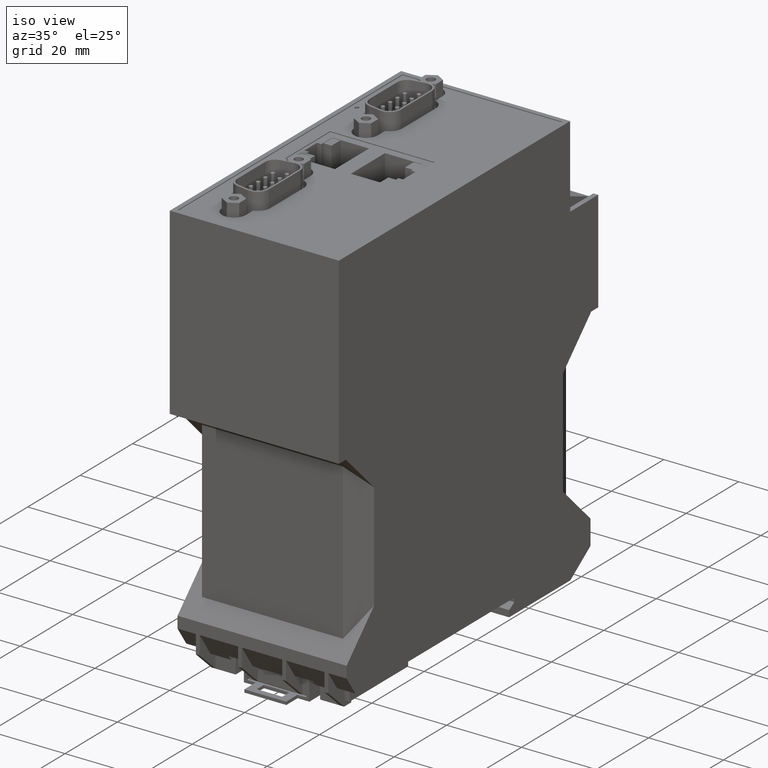
[diagram: clean part render]
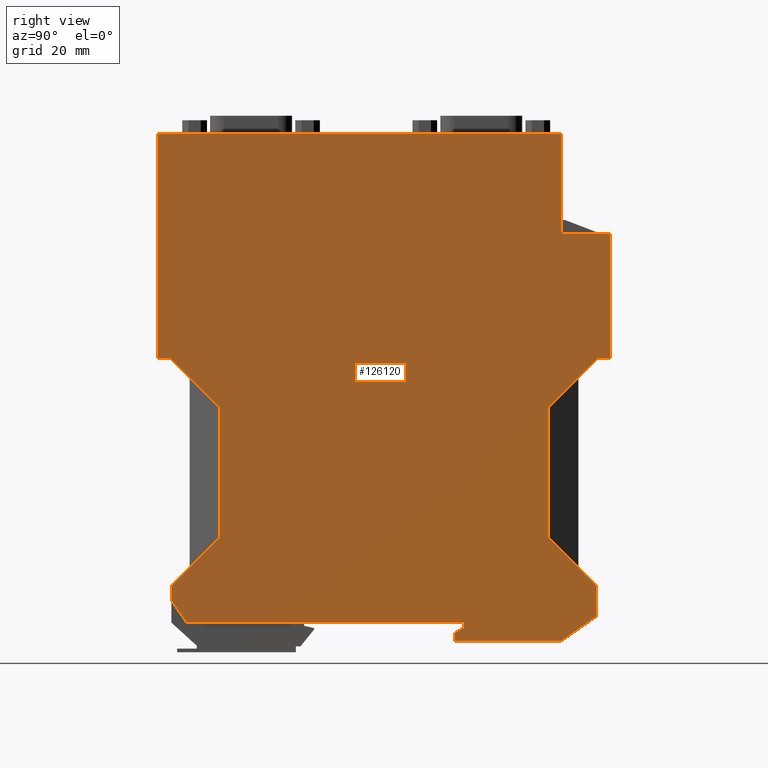
[diagram: tour spotlight — one face highlighted and labeled with its STEP entity id]
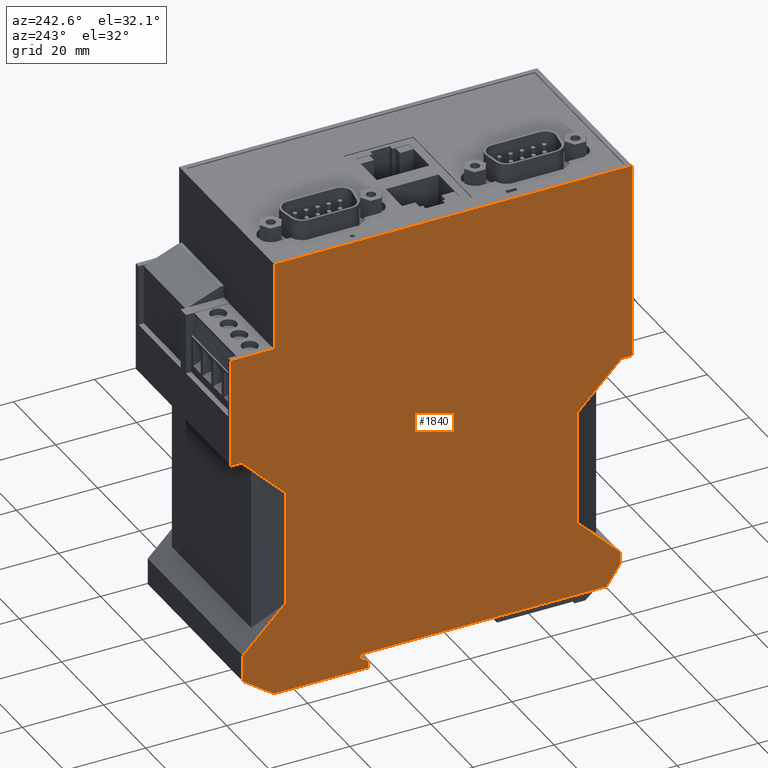
[diagram: tour spotlight — one face highlighted and labeled with its STEP entity id]
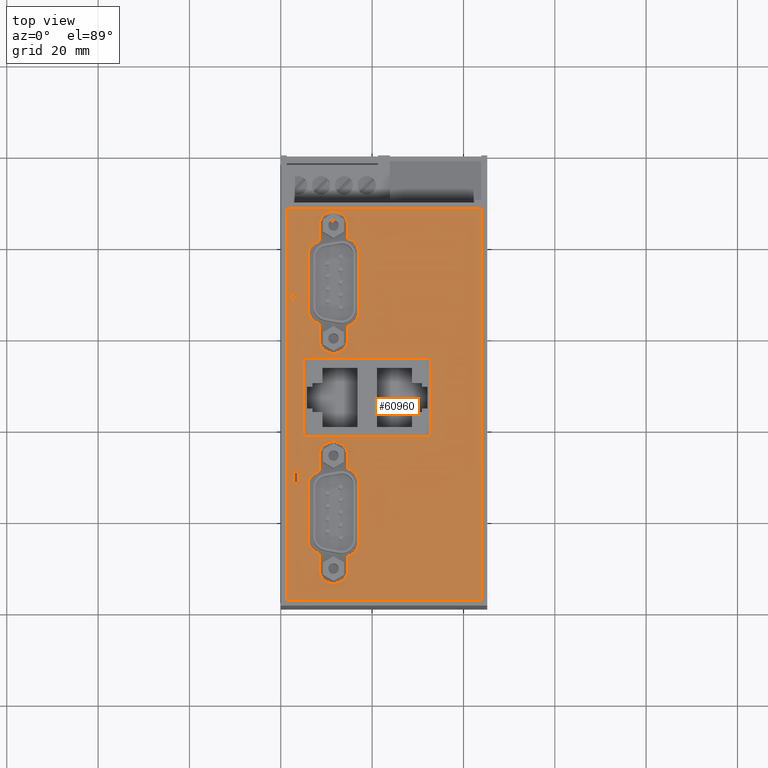
[diagram: tour spotlight — one face highlighted and labeled with its STEP entity id]
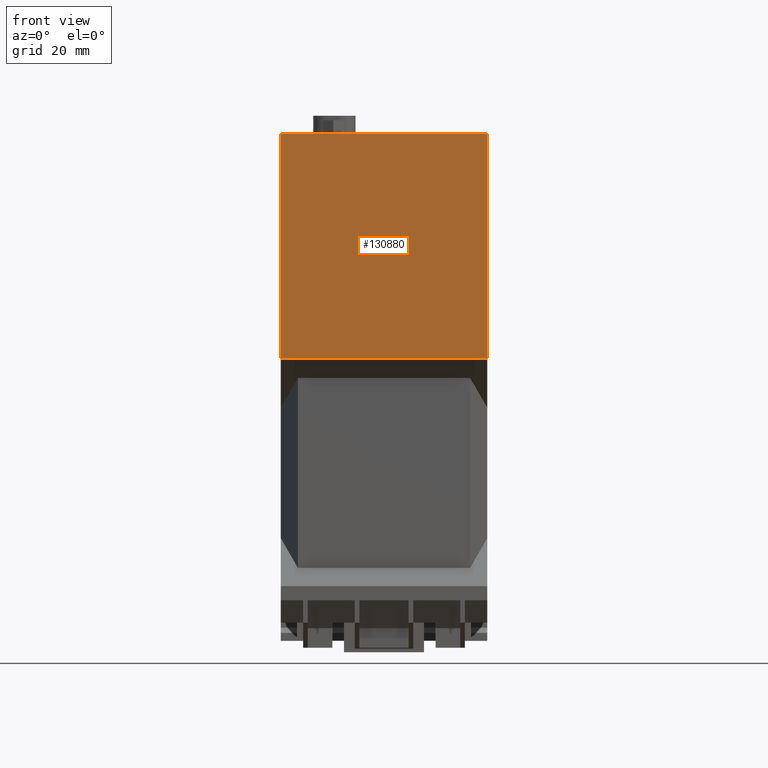
[diagram: tour spotlight — one face highlighted and labeled with its STEP entity id]
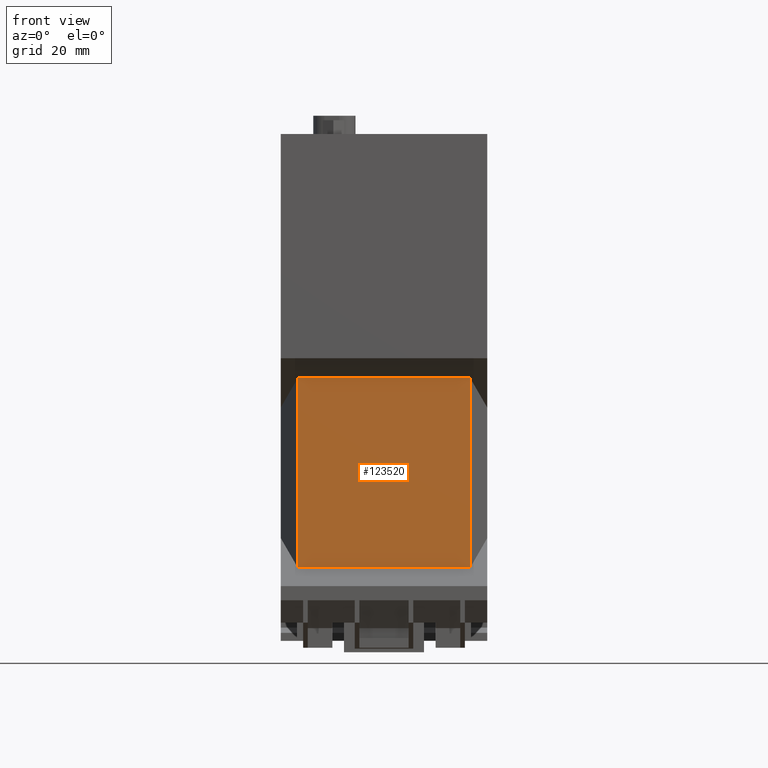
[diagram: tour spotlight — one face highlighted and labeled with its STEP entity id]
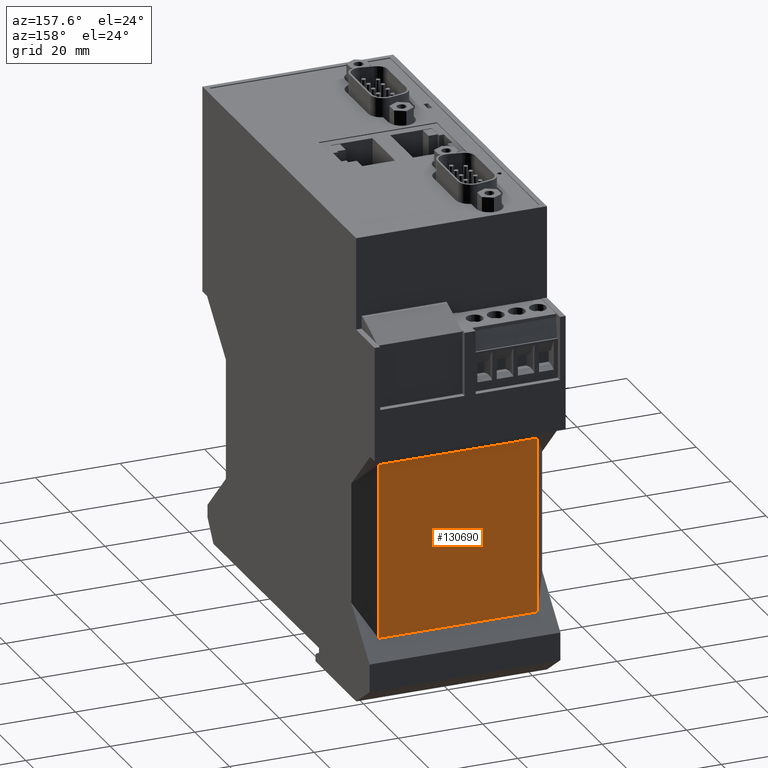
[diagram: tour spotlight — one face highlighted and labeled with its STEP entity id]
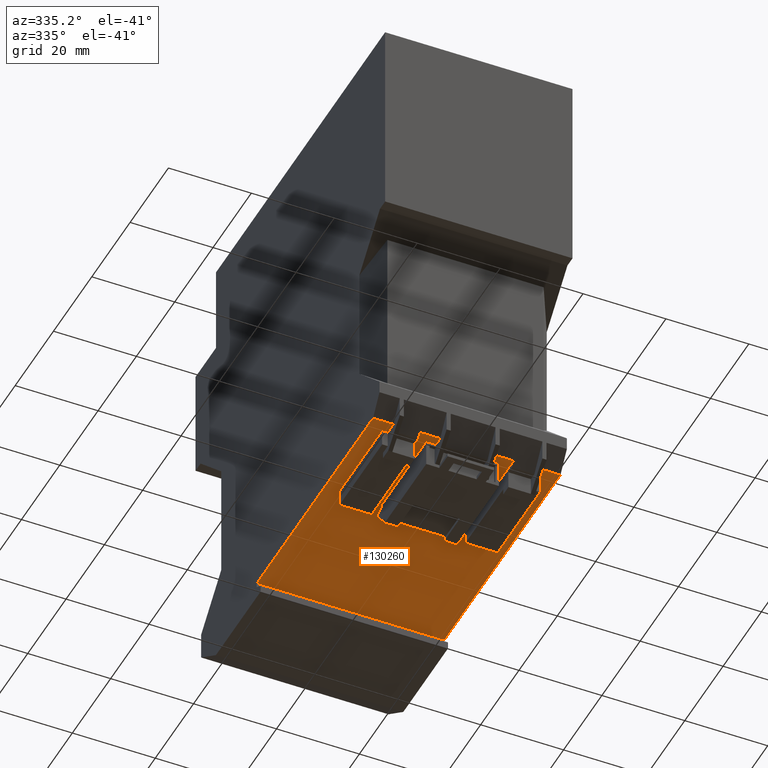
[diagram: tour spotlight — one face highlighted and labeled with its STEP entity id]
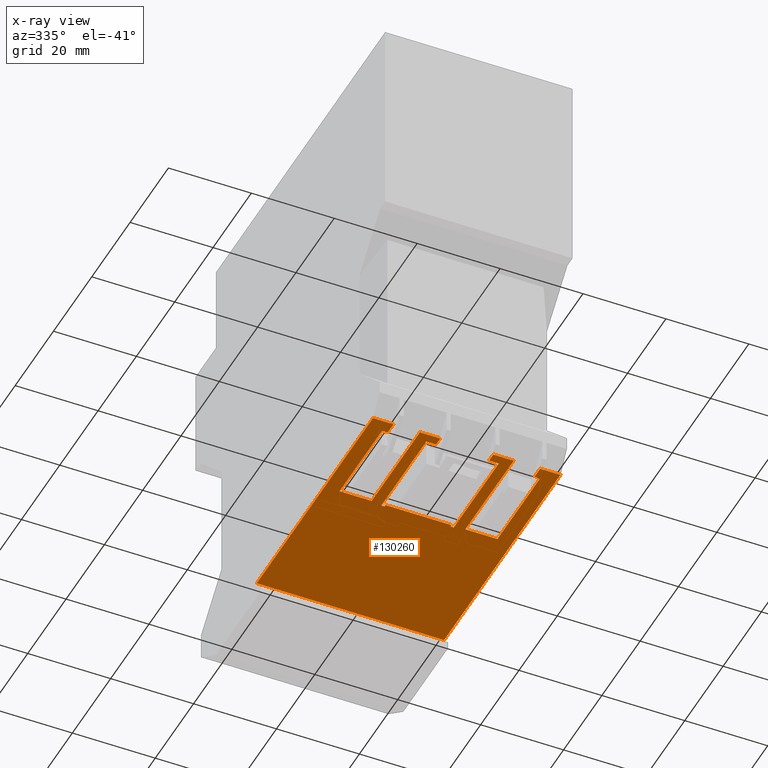
[diagram: x-ray of the same camera — body ghosted, this tour face saturated]
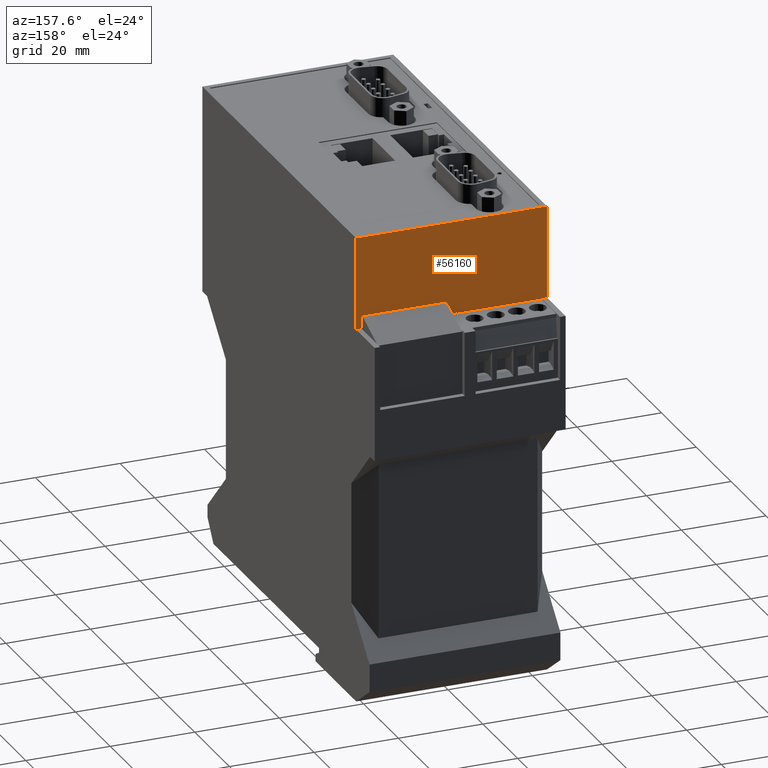
[diagram: tour spotlight — one face highlighted and labeled with its STEP entity id]
A machine part: a face-by-face anatomy tour. The part has 412 B-rep faces; the first image is the clean iso view, then the 8 largest visible faces are spotlighted one at a time (largest first), each with its STEP entity span.

Face 1 — right view, entity #126120. In plain terms, the highlighted planar face has unit normal (1, 0, 0).
Definition (entity closure, byte-faithful):
#19360=CARTESIAN_POINT('',(-66.9999999999093,57.9000000000013,33.9));
#19370=VERTEX_POINT('',#19360);
#19400=CARTESIAN_POINT('',(24.,57.8999999999923,33.9));
#19410=DIRECTION('',(-1.,9.89E-14,0.));
#19420=VECTOR('',#19410,1.);
#19430=LINE('',#19400,#19420);
#19440=CARTESIAN_POINT('',(-64.3500000000018,57.900000000001,33.9));
#19450=VERTEX_POINT('',#19440);
#19460=EDGE_CURVE('',#19450,#19370,#19430,.T.);
#21780=CARTESIAN_POINT('',(-64.0500000000063,4.9000000000159,33.9));
#21790=VERTEX_POINT('',#21780);
#21820=CARTESIAN_POINT('',(-77.1081632652817,24.,33.9));
#21830=DIRECTION('',(0.564381899303651,-0.825513822863314,-0.));
#21840=VECTOR('',#21830,1.);
#21850=LINE('',#21820,#21840);
#21860=CARTESIAN_POINT('',(-60.7000000000009,5.04485342389671E-13,33.9))
;
#21870=VERTEX_POINT('',#21860);
#21880=EDGE_CURVE('',#21790,#21870,#21850,.T.);
#55960=CARTESIAN_POINT('',(21.2999999999832,85.1000000000079,33.9));
#55970=VERTEX_POINT('',#55960);
#56000=CARTESIAN_POINT('',(21.3000000000036,24.,33.9));
#56010=DIRECTION('',(2.17588503380295E-24,-1.,-0.));
#56020=VECTOR('',#56010,1.);
#56030=LINE('',#56000,#56020);
#56040=CARTESIAN_POINT('',(21.2999999999832,106.999999999943,33.9));
#56050=VERTEX_POINT('',#56040);
#56060=EDGE_CURVE('',#56050,#55970,#56030,.T.);
#56650=CARTESIAN_POINT('',(24.,106.999999999941,33.9));
#56660=DIRECTION('',(-1.,7.38964445188328E-13,0.));
#56670=VECTOR('',#56660,1.);
#56680=LINE('',#56650,#56670);
#56690=CARTESIAN_POINT('',(-66.9999999999093,107.000000000009,33.9));
#56700=VERTEX_POINT('',#56690);
#56710=EDGE_CURVE('',#56050,#56700,#56680,.T.);
#122860=CARTESIAN_POINT('',(31.9999999999779,85.1000000000079,33.9));
#122870=VERTEX_POINT('',#122860);
#122900=CARTESIAN_POINT('',(24.,85.1000000000079,33.9));
#122910=DIRECTION('',(-1.,-2.17588503379895E-24,0.));
#122920=VECTOR('',#122910,1.);
#122930=LINE('',#122900,#122920);
#122940=EDGE_CURVE('',#122870,#55970,#122930,.T.);
#124700=CARTESIAN_POINT('',(-57.4000000000029,25.7999999999959,33.9));
#124710=DIRECTION('',(0.,0.,1.));
#124720=DIRECTION('',(1.,0.,0.));
#124730=AXIS2_PLACEMENT_3D('',#124700,#124710,#124720);
#124740=PLANE('',#124730);
#124750=ORIENTED_EDGE('',*,*,#21880,.T.);
#124760=CARTESIAN_POINT('',(-64.0500000000063,24.,33.9));
#124770=DIRECTION('',(0.,1.,0.));
#124780=VECTOR('',#124770,1.);
#124790=LINE('',#124760,#124780);
#124800=CARTESIAN_POINT('',(-64.0500000000063,7.99999999999596,33.9));
#124810=VERTEX_POINT('',#124800);
#124820=EDGE_CURVE('',#21790,#124810,#124790,.T.);
#124830=ORIENTED_EDGE('',*,*,#124820,.F.);
#124840=CARTESIAN_POINT('',(24.,96.049999999986,33.9));
#124850=DIRECTION('',(0.707106781186613,0.707106781186482,0.));
#124860=VECTOR('',#124850,1.);
#124870=LINE('',#124840,#124860);
#124880=CARTESIAN_POINT('',(-53.5500000000014,18.4999999999989,33.9));
#124890=VERTEX_POINT('',#124880);
#124900=EDGE_CURVE('',#124810,#124890,#124870,.T.);
#124910=ORIENTED_EDGE('',*,*,#124900,.F.);
#124920=CARTESIAN_POINT('',(-53.5500000000014,24.,33.9));
#124930=DIRECTION('',(0.,-1.,0.));
#124940=VECTOR('',#124930,1.);
#124950=LINE('',#124920,#124940);
#124960=CARTESIAN_POINT('',(-53.5500000000014,47.1000000000007,33.9));
#124970=VERTEX_POINT('',#124960);
#124980=EDGE_CURVE('',#124970,#124890,#124950,.T.);
#124990=ORIENTED_EDGE('',*,*,#124980,.T.);
#125000=CARTESIAN_POINT('',(24.,-30.45,33.9));
#125010=DIRECTION('',(-0.707106781186551,0.707106781186544,0.));
#125020=VECTOR('',#125010,1.);
#125030=LINE('',#125000,#125020);
#125040=EDGE_CURVE('',#124970,#19450,#125030,.T.);
#125050=ORIENTED_EDGE('',*,*,#125040,.F.);
#125060=ORIENTED_EDGE('',*,*,#19460,.F.);
#125070=CARTESIAN_POINT('',(-66.9999999999093,24.,33.9));
#125080=DIRECTION('',(0.,1.,0.));
#125090=VECTOR('',#125080,1.);
#125100=LINE('',#125070,#125090);
#125110=EDGE_CURVE('',#19370,#56700,#125100,.T.);
#125120=ORIENTED_EDGE('',*,*,#125110,.F.);
#125130=ORIENTED_EDGE('',*,*,#56710,.T.);
#125140=ORIENTED_EDGE('',*,*,#56060,.F.);
#125150=ORIENTED_EDGE('',*,*,#122940,.T.);
#125160=CARTESIAN_POINT('',(32.0000000000223,24.,33.9));
#125170=DIRECTION('',(-7.27300000002176E-13,1.,0.));
#125180=VECTOR('',#125170,1.);
#125190=LINE('',#125160,#125180);
#125200=CARTESIAN_POINT('',(31.9999999999977,57.9000000000013,33.9));
#125210=VERTEX_POINT('',#125200);
#125220=EDGE_CURVE('',#125210,#122870,#125190,.T.);
#125230=ORIENTED_EDGE('',*,*,#125220,.T.);
#125240=CARTESIAN_POINT('',(24.,57.9000000000005,33.9));
#125250=DIRECTION('',(1.,9.89E-14,0.));
#125260=VECTOR('',#125250,1.);
#125270=LINE('',#125240,#125260);
#125280=CARTESIAN_POINT('',(29.3500000000902,57.900000000001,33.9));
#125290=VERTEX_POINT('',#125280);
#125300=EDGE_CURVE('',#125290,#125210,#125270,.T.);
#125310=ORIENTED_EDGE('',*,*,#125300,.T.);
#125320=CARTESIAN_POINT('',(24.,52.5499999999109,33.9));
#125330=DIRECTION('',(0.707106781186551,0.707106781186544,0.));
#125340=VECTOR('',#125330,1.);
#125350=LINE('',#125320,#125340);
#125360=CARTESIAN_POINT('',(18.5499999999986,47.0999999999095,33.9));
#125370=VERTEX_POINT('',#125360);
#125380=EDGE_CURVE('',#125370,#125290,#125350,.T.);
#125390=ORIENTED_EDGE('',*,*,#125380,.T.);
#125400=CARTESIAN_POINT('',(18.5499999999986,24.,33.9));
#125410=DIRECTION('',(0.,1.,0.));
#125420=VECTOR('',#125410,1.);
#125430=LINE('',#125400,#125420);
#125440=CARTESIAN_POINT('',(18.5499999999986,18.5000000000902,33.9));
#125450=VERTEX_POINT('',#125440);
#125460=EDGE_CURVE('',#125450,#125370,#125430,.T.);
#125470=ORIENTED_EDGE('',*,*,#125460,.T.);
#125480=CARTESIAN_POINT('',(24.,13.0500000000897,33.9));
#125490=DIRECTION('',(-0.707106781186613,0.707106781186482,0.));
#125500=VECTOR('',#125490,1.);
#125510=LINE('',#125480,#125500);
#125520=CARTESIAN_POINT('',(29.0500000000947,7.99999999999599,33.9));
#125530=VERTEX_POINT('',#125520);
#125540=EDGE_CURVE('',#125530,#125450,#125510,.T.);
#125550=ORIENTED_EDGE('',*,*,#125540,.T.);
#125560=CARTESIAN_POINT('',(29.0500000000947,24.,33.9));
#125570=DIRECTION('',(0.,1.,0.));
#125580=VECTOR('',#125570,1.);
#125590=LINE('',#125560,#125580);
#125600=CARTESIAN_POINT('',(29.0500000000846,1.40000000003149,33.9));
#125610=VERTEX_POINT('',#125600);
#125620=EDGE_CURVE('',#125610,#125530,#125590,.T.);
#125630=ORIENTED_EDGE('',*,*,#125620,.T.);
#125640=CARTESIAN_POINT('',(24.,-2.13604806800835,33.9));
#125650=DIRECTION('',(-0.819152044288986,-0.573576436351054,0.));
#125660=VECTOR('',#125650,1.);
#125670=LINE('',#125640,#125660);
#125680=CARTESIAN_POINT('',(21.3380007636528,-3.99999999998567,33.9));
#125690=VERTEX_POINT('',#125680);
#125700=EDGE_CURVE('',#125610,#125690,#125670,.T.);
#125710=ORIENTED_EDGE('',*,*,#125700,.F.);
#125720=CARTESIAN_POINT('',(24.,-4.00000000000009,33.9));
#125730=DIRECTION('',(1.,4.80965890943096E-26,0.));
#125740=VECTOR('',#125730,1.);
#125750=LINE('',#125720,#125740);
#125760=CARTESIAN_POINT('',(-2.00000000000178,-4.00000000000022,33.9));
#125770=VERTEX_POINT('',#125760);
#125780=EDGE_CURVE('',#125770,#125690,#125750,.T.);
#125790=ORIENTED_EDGE('',*,*,#125780,.T.);
#125800=CARTESIAN_POINT('',(-2.00000000000178,24.,33.9));
#125810=DIRECTION('',(0.,1.,0.));
#125820=VECTOR('',#125810,1.);
#125830=LINE('',#125800,#125820);
#125840=CARTESIAN_POINT('',(-2.00000000000178,-2.25459663117339,33.9));
#125850=VERTEX_POINT('',#125840);
#125860=EDGE_CURVE('',#125770,#125850,#125830,.T.);
#125870=ORIENTED_EDGE('',*,*,#125860,.F.);
#125880=CARTESIAN_POINT('',(24.,12.7565103677565,33.9));
#125890=DIRECTION('',(-0.86602540378446,-0.499999999999964,0.));
#125900=VECTOR('',#125890,1.);
#125910=LINE('',#125880,#125900);
#125920=CARTESIAN_POINT('',(-1.76925141204265E-12,-1.09989609279425,33.9
));
#125930=VERTEX_POINT('',#125920);
#125940=EDGE_CURVE('',#125930,#125850,#125910,.T.);
#125950=ORIENTED_EDGE('',*,*,#125940,.T.);
#125960=CARTESIAN_POINT('',(-1.77990955307905E-12,24.,33.9));
#125970=DIRECTION('',(4.E-16,-1.,-0.));
#125980=VECTOR('',#125970,1.);
#125990=LINE('',#125960,#125980);
#126000=CARTESIAN_POINT('',(-1.76925141204265E-12,-3.69482222595252E-13,
33.9));
#126010=VERTEX_POINT('',#126000);
#126020=EDGE_CURVE('',#126010,#125930,#125990,.T.);
#126030=ORIENTED_EDGE('',*,*,#126020,.T.);
#126040=CARTESIAN_POINT('',(24.,-7.14095449438901E-13,33.9));
#126050=DIRECTION('',(1.,-1.44E-14,-0.));
#126060=VECTOR('',#126050,1.);
#126070=LINE('',#126040,#126060);
#126080=EDGE_CURVE('',#21870,#126010,#126070,.T.);
#126090=ORIENTED_EDGE('',*,*,#126080,.T.);
#126100=EDGE_LOOP('',(#126090,#126030,#125950,#125870,#125790,#125710,
#125630,#125550,#125470,#125390,#125310,#125230,#125150,#125140,#125130,
#125120,#125060,#125050,#124990,#124910,#124830,#124750));
#126110=FACE_OUTER_BOUND('',#126100,.T.);
#126120=ADVANCED_FACE('',(#126110),#124740,.T.);

Face 2 — auxiliary view, entity #1840. In plain terms, the highlighted planar face has unit normal (-1, 0, 0).
Definition (entity closure, byte-faithful):
#10=CARTESIAN_POINT('',(24.,24.,-11.3));
#20=DIRECTION('',(0.,0.,-1.));
#30=DIRECTION('',(-1.,0.,0.));
#40=AXIS2_PLACEMENT_3D('',#10,#20,#30);
#50=PLANE('',#40);
#60=CARTESIAN_POINT('',(24.,-7.14095449438901E-13,-11.3));
#70=DIRECTION('',(1.,-1.44E-14,-0.));
#80=VECTOR('',#70,1.);
#90=LINE('',#60,#80);
#100=CARTESIAN_POINT('',(-60.7000000000028,5.04485342389671E-13,-11.3));
#110=VERTEX_POINT('',#100);
#120=CARTESIAN_POINT('',(-1.76925141204265E-12,-3.69482222595252E-13,
-11.3));
#130=VERTEX_POINT('',#120);
#140=EDGE_CURVE('',#110,#130,#90,.T.);
#150=ORIENTED_EDGE('',*,*,#140,.F.);
#160=CARTESIAN_POINT('',(-1.76925141204265E-12,-3.69482222595252E-13,
-11.3));
#170=DIRECTION('',(-3.23004482157597E-15,-1.,0.));
#180=VECTOR('',#170,1.);
#190=LINE('',#160,#180);
#200=CARTESIAN_POINT('',(-1.76925141204265E-12,-1.09989609279425,-11.3))
;
#210=VERTEX_POINT('',#200);
#220=EDGE_CURVE('',#130,#210,#190,.T.);
#230=ORIENTED_EDGE('',*,*,#220,.F.);
#240=CARTESIAN_POINT('',(-1.77280412572145E-12,-1.09989609279425,-11.3))
;
#250=DIRECTION('',(-0.86602540378446,-0.499999999999964,0.));
#260=VECTOR('',#250,1.);
#270=LINE('',#240,#260);
#280=CARTESIAN_POINT('',(-2.00000000000178,-2.25459663117339,-11.3));
#290=VERTEX_POINT('',#280);
#300=EDGE_CURVE('',#210,#290,#270,.T.);
#310=ORIENTED_EDGE('',*,*,#300,.F.);
#320=CARTESIAN_POINT('',(-2.00000000000288,24.,-11.3));
#330=DIRECTION('',(4.27899157140077E-14,-1.,-0.));
#340=VECTOR('',#330,1.);
#350=LINE('',#320,#340);
#360=CARTESIAN_POINT('',(-2.00000000000178,-4.00000000000004,-11.3));
#370=VERTEX_POINT('',#360);
#380=EDGE_CURVE('',#290,#370,#350,.T.);
#390=ORIENTED_EDGE('',*,*,#380,.F.);
#400=CARTESIAN_POINT('',(24.,-4.00000000000004,-11.3));
#410=DIRECTION('',(1.,4.80965890943096E-26,0.));
#420=VECTOR('',#410,1.);
#430=LINE('',#400,#420);
#440=CARTESIAN_POINT('',(21.3380007636733,-4.00000000000004,-11.3));
#450=VERTEX_POINT('',#440);
#460=EDGE_CURVE('',#370,#450,#430,.T.);
#470=ORIENTED_EDGE('',*,*,#460,.F.);
#480=CARTESIAN_POINT('',(24.,-2.13604806801552,-11.3));
#490=DIRECTION('',(0.819152044288986,0.573576436351054,0.));
#500=VECTOR('',#490,1.);
#510=LINE('',#480,#500);
#520=CARTESIAN_POINT('',(29.0500000000947,1.40000000000989,-11.3));
#530=VERTEX_POINT('',#520);
#540=EDGE_CURVE('',#450,#530,#510,.T.);
#550=ORIENTED_EDGE('',*,*,#540,.F.);
#560=CARTESIAN_POINT('',(29.0500000000947,1.40000000001025,-11.3));
#570=DIRECTION('',(2.15315980533829E-15,1.,0.));
#580=VECTOR('',#570,1.);
#590=LINE('',#560,#580);
#600=CARTESIAN_POINT('',(29.0500000000947,7.99999999999599,-11.3));
#610=VERTEX_POINT('',#600);
#620=EDGE_CURVE('',#530,#610,#590,.T.);
#630=ORIENTED_EDGE('',*,*,#620,.F.);
#640=CARTESIAN_POINT('',(24.,13.0500000000897,-11.3));
#650=DIRECTION('',(-0.707106781186613,0.707106781186482,0.));
#660=VECTOR('',#650,1.);
#670=LINE('',#640,#660);
#680=CARTESIAN_POINT('',(18.55000000009,18.4999999999987,-11.3));
#690=VERTEX_POINT('',#680);
#700=EDGE_CURVE('',#610,#690,#670,.T.);
#710=ORIENTED_EDGE('',*,*,#700,.F.);
#720=CARTESIAN_POINT('',(18.5500000000901,24.,-11.3));
#730=DIRECTION('',(4.E-15,1.,0.));
#740=VECTOR('',#730,1.);
#750=LINE('',#720,#740);
#760=CARTESIAN_POINT('',(18.5500000000902,47.1000000000011,-11.3));
#770=VERTEX_POINT('',#760);
#780=EDGE_CURVE('',#690,#770,#750,.T.);
#790=ORIENTED_EDGE('',*,*,#780,.F.);
#800=CARTESIAN_POINT('',(24.,52.5499999999109,-11.3));
#810=DIRECTION('',(0.707106781186551,0.707106781186544,0.));
#820=VECTOR('',#810,1.);
#830=LINE('',#800,#820);
#840=CARTESIAN_POINT('',(29.3500000000902,57.900000000001,-11.3));
#850=VERTEX_POINT('',#840);
#860=EDGE_CURVE('',#770,#850,#830,.T.);
#870=ORIENTED_EDGE('',*,*,#860,.F.);
#880=CARTESIAN_POINT('',(24.,57.9000000000005,-11.3));
#890=DIRECTION('',(1.,9.89E-14,0.));
#900=VECTOR('',#890,1.);
#910=LINE('',#880,#900);
#920=CARTESIAN_POINT('',(32.0000000000386,57.9000000000013,-11.3));
#930=VERTEX_POINT('',#920);
#940=EDGE_CURVE('',#850,#930,#910,.T.);
#950=ORIENTED_EDGE('',*,*,#940,.F.);
#960=CARTESIAN_POINT('',(32.0000000000633,24.,-11.3));
#970=DIRECTION('',(7.27300000002176E-13,-1.,-0.));
#980=VECTOR('',#970,1.);
#990=LINE('',#960,#980);
#1000=CARTESIAN_POINT('',(32.0000000000188,85.1000000000079,-11.3));
#1010=VERTEX_POINT('',#1000);
#1020=EDGE_CURVE('',#1010,#930,#990,.T.);
#1030=ORIENTED_EDGE('',*,*,#1020,.T.);
#1040=CARTESIAN_POINT('',(24.,85.1000000000079,-11.3));
#1050=DIRECTION('',(-1.,-2.17588503379895E-24,0.));
#1060=VECTOR('',#1050,1.);
#1070=LINE('',#1040,#1060);
#1080=CARTESIAN_POINT('',(21.3000000000241,85.1000000000079,-11.3));
#1090=VERTEX_POINT('',#1080);
#1100=EDGE_CURVE('',#1010,#1090,#1070,.T.);
#1110=ORIENTED_EDGE('',*,*,#1100,.F.);
#1120=CARTESIAN_POINT('',(21.3000000000241,24.,-11.3));
#1130=DIRECTION('',(-2.17588503380295E-24,1.,0.));
#1140=VECTOR('',#1130,1.);
#1150=LINE('',#1120,#1140);
#1160=CARTESIAN_POINT('',(21.3000000000241,106.999999999943,-11.3));
#1170=VERTEX_POINT('',#1160);
#1180=EDGE_CURVE('',#1090,#1170,#1150,.T.);
#1190=ORIENTED_EDGE('',*,*,#1180,.F.);
#1200=CARTESIAN_POINT('',(24.,106.999999999941,-11.3));
#1210=DIRECTION('',(-1.,7.38964445188328E-13,0.));
#1220=VECTOR('',#1210,1.);
#1230=LINE('',#1200,#1220);
#1240=CARTESIAN_POINT('',(-66.9999999999093,107.000000000009,-11.3));
#1250=VERTEX_POINT('',#1240);
#1260=EDGE_CURVE('',#1170,#1250,#1230,.T.);
#1270=ORIENTED_EDGE('',*,*,#1260,.F.);
#1280=CARTESIAN_POINT('',(-66.9999999999093,24.,-11.3));
#1290=DIRECTION('',(0.,1.,0.));
#1300=VECTOR('',#1290,1.);
#1310=LINE('',#1280,#1300);
#1320=CARTESIAN_POINT('',(-66.9999999999093,57.9000000000013,-11.3));
#1330=VERTEX_POINT('',#1320);
#1340=EDGE_CURVE('',#1330,#1250,#1310,.T.);
#1350=ORIENTED_EDGE('',*,*,#1340,.T.);
#1360=CARTESIAN_POINT('',(24.,57.8999999999923,-11.3));
#1370=DIRECTION('',(-1.,9.89E-14,0.));
#1380=VECTOR('',#1370,1.);
#1390=LINE('',#1360,#1380);
#1400=CARTESIAN_POINT('',(-64.3500000000018,57.900000000001,-11.3));
#1410=VERTEX_POINT('',#1400);
#1420=EDGE_CURVE('',#1410,#1330,#1390,.T.);
#1430=ORIENTED_EDGE('',*,*,#1420,.T.);
#1440=CARTESIAN_POINT('',(24.,-30.45,-11.3));
#1450=DIRECTION('',(0.707106781186551,-0.707106781186544,-0.));
#1460=VECTOR('',#1450,1.);
#1470=LINE('',#1440,#1460);
#1480=CARTESIAN_POINT('',(-53.5500000000017,47.1000000000011,-11.3));
#1490=VERTEX_POINT('',#1480);
#1500=EDGE_CURVE('',#1410,#1490,#1470,.T.);
#1510=ORIENTED_EDGE('',*,*,#1500,.F.);
#1520=CARTESIAN_POINT('',(-53.5500000000017,24.,-11.3));
#1530=DIRECTION('',(0.,1.,0.));
#1540=VECTOR('',#1530,1.);
#1550=LINE('',#1520,#1540);
#1560=CARTESIAN_POINT('',(-53.5500000000018,18.4999999999986,-11.3));
#1570=VERTEX_POINT('',#1560);
#1580=EDGE_CURVE('',#1570,#1490,#1550,.T.);
#1590=ORIENTED_EDGE('',*,*,#1580,.T.);
#1600=CARTESIAN_POINT('',(24.,96.049999999986,-11.3));
#1610=DIRECTION('',(-0.707106781186613,-0.707106781186482,0.));
#1620=VECTOR('',#1610,1.);
#1630=LINE('',#1600,#1620);
#1640=CARTESIAN_POINT('',(-64.0500000000063,7.99999999999596,-11.3));
#1650=VERTEX_POINT('',#1640);
#1660=EDGE_CURVE('',#1570,#1650,#1630,.T.);
#1670=ORIENTED_EDGE('',*,*,#1660,.F.);
#1680=CARTESIAN_POINT('',(-64.0500000000063,24.,-11.3));
#1690=DIRECTION('',(0.,-1.,0.));
#1700=VECTOR('',#1690,1.);
#1710=LINE('',#1680,#1700);
#1720=CARTESIAN_POINT('',(-64.0500000000063,4.90000000001318,-11.3));
#1730=VERTEX_POINT('',#1720);
#1740=EDGE_CURVE('',#1650,#1730,#1710,.T.);
#1750=ORIENTED_EDGE('',*,*,#1740,.F.);
#1760=CARTESIAN_POINT('',(-77.1081632652836,24.,-11.3));
#1770=DIRECTION('',(-0.564381899303651,0.825513822863314,0.));
#1780=VECTOR('',#1770,1.);
#1790=LINE('',#1760,#1780);
#1800=EDGE_CURVE('',#110,#1730,#1790,.T.);
#1810=ORIENTED_EDGE('',*,*,#1800,.T.);
#1820=EDGE_LOOP('',(#1810,#1750,#1670,#1590,#1510,#1430,#1350,#1270,
#1190,#1110,#1030,#950,#870,#790,#710,#630,#550,#470,#390,#310,#230,#150
));
#1830=FACE_OUTER_BOUND('',#1820,.T.);
#1840=ADVANCED_FACE('',(#1830),#50,.T.);

Face 3 — top view, entity #60960. In plain terms, the highlighted planar face has unit normal (-0, 0, 1).
Definition (entity closure, byte-faithful):
#56980=CARTESIAN_POINT('',(-65.7499999999966,106.800000000019,
32.6499999999959));
#56990=VERTEX_POINT('',#56980);
#57020=CARTESIAN_POINT('',(24.,106.799999999941,32.6499999999959));
#57030=DIRECTION('',(-1.,7.38964445188328E-13,0.));
#57040=VECTOR('',#57030,1.);
#57050=LINE('',#57020,#57040);
#57060=CARTESIAN_POINT('',(20.0499999999852,106.799999999956,
32.6499999999959));
#57070=VERTEX_POINT('',#57060);
#57080=EDGE_CURVE('',#57070,#56990,#57050,.T.);
#57360=CARTESIAN_POINT('',(-65.7499999999966,106.800000000019,
-10.0499999998488));
#57370=VERTEX_POINT('',#57360);
#57400=CARTESIAN_POINT('',(-65.7499999999966,106.800000000008,-11.3));
#57410=DIRECTION('',(-6.47623918906154E-37,-8.76330016597908E-25,-1.));
#57420=VECTOR('',#57410,1.);
#57430=LINE('',#57400,#57420);
#57440=EDGE_CURVE('',#56990,#57370,#57430,.T.);
#57640=CARTESIAN_POINT('',(20.0499999999852,106.799999999944,-11.3));
#57650=DIRECTION('',(6.47623918906154E-37,8.76330016597908E-25,1.));
#57660=VECTOR('',#57650,1.);
#57670=LINE('',#57640,#57660);
#57680=CARTESIAN_POINT('',(20.0499999999852,106.799999999956,
-10.0499999998488));
#57690=VERTEX_POINT('',#57680);
#57700=EDGE_CURVE('',#57690,#57070,#57670,.T.);
#57890=CARTESIAN_POINT('',(-6.94999999994276,106.799999999976,
-2.19999999999999));
#57900=DIRECTION('',(7.38964445188328E-13,1.,-8.76330016597908E-25));
#57910=DIRECTION('',(1.,-7.38964445188328E-13,-0.));
#57920=AXIS2_PLACEMENT_3D('',#57890,#57900,#57910);
#57930=PLANE('',#57920);
#57940=CARTESIAN_POINT('',(-40.2333999999013,106.800000000001,-13.5));
#57950=DIRECTION('',(-6.62562871323012E-18,-8.76325120071037E-25,-1.));
#57960=VECTOR('',#57950,1.);
#57970=LINE('',#57940,#57960);
#57980=CARTESIAN_POINT('',(-40.2333999999013,106.800000000001,
-7.44339999998654));
#57990=VERTEX_POINT('',#57980);
#58000=CARTESIAN_POINT('',(-40.2333999999013,106.800000000001,
-8.44339999998654));
#58010=VERTEX_POINT('',#58000);
#58020=EDGE_CURVE('',#57990,#58010,#57970,.T.);
#58030=ORIENTED_EDGE('',*,*,#58020,.T.);
#58040=CARTESIAN_POINT('',(39.9,106.799999999941,-7.44339999998654));
#58050=DIRECTION('',(-1.,7.38964445188328E-13,6.62562860080833E-18));
#58060=VECTOR('',#58050,1.);
#58070=LINE('',#58040,#58060);
#58080=CARTESIAN_POINT('',(-37.6333999999013,106.799999999999,
-7.44339999998654));
#58090=VERTEX_POINT('',#58080);
#58100=EDGE_CURVE('',#58090,#57990,#58070,.T.);
#58110=ORIENTED_EDGE('',*,*,#58100,.T.);
#58120=CARTESIAN_POINT('',(-37.6333999999013,106.799999999999,-13.5));
#58130=DIRECTION('',(6.62562871323012E-18,8.76325120071037E-25,1.));
#58140=VECTOR('',#58130,1.);
#58150=LINE('',#58120,#58140);
#58160=CARTESIAN_POINT('',(-37.6333999999013,106.799999999999,
-8.44339999998654));
#58170=VERTEX_POINT('',#58160);
#58180=EDGE_CURVE('',#58170,#58090,#58150,.T.);
#58190=ORIENTED_EDGE('',*,*,#58180,.T.);
#58200=CARTESIAN_POINT('',(39.9,106.799999999941,-8.44339999998654));
#58210=DIRECTION('',(1.,-7.38964445188328E-13,-6.62562860080833E-18));
#58220=VECTOR('',#58210,1.);
#58230=LINE('',#58200,#58220);
#58240=EDGE_CURVE('',#58010,#58170,#58230,.T.);
#58250=ORIENTED_EDGE('',*,*,#58240,.T.);
#58260=EDGE_LOOP('',(#58250,#58190,#58110,#58030));
#58270=FACE_BOUND('',#58260,.T.);
#58280=CARTESIAN_POINT('',(0.591999999983017,106.8,-8.58819999998434));
#58290=DIRECTION('',(7.38964445188328E-13,1.,-8.76330016597908E-25));
#58300=DIRECTION('',(-1.,7.38964445188328E-13,3.59138363842027E-39));
#58310=AXIS2_PLACEMENT_3D('',#58280,#58290,#58300);
#58320=CIRCLE('',#58310,0.54);
#58330=CARTESIAN_POINT('',(0.0519999999830167,106.799999999971,
-8.58819999998434));
#58340=VERTEX_POINT('',#58330);
#58350=CARTESIAN_POINT('',(1.13199999998302,106.799999999999,
-8.58819999998434));
#58360=VERTEX_POINT('',#58350);
#58370=EDGE_CURVE('',#58340,#58360,#58320,.T.);
#58380=ORIENTED_EDGE('',*,*,#58370,.F.);
#58390=EDGE_CURVE('',#58360,#58340,#58320,.T.);
#58400=ORIENTED_EDGE('',*,*,#58390,.F.);
#58410=EDGE_LOOP('',(#58400,#58380));
#58420=FACE_BOUND('',#58410,.T.);
#58430=CARTESIAN_POINT('',(28.9417518810975,106.799999999938,
-2.9493999999635));
#58440=DIRECTION('',(1.,-7.38964445188328E-13,-0.));
#58450=VECTOR('',#58440,1.);
#58460=LINE('',#58430,#58450);
#58470=CARTESIAN_POINT('',(12.790088618989,106.799999999961,
-2.9493999999635));
#58480=VERTEX_POINT('',#58470);
#58490=CARTESIAN_POINT('',(16.1737518811036,106.799999999959,
-2.9493999999635));
#58500=VERTEX_POINT('',#58490);
#58510=EDGE_CURVE('',#58480,#58500,#58460,.T.);
#58520=ORIENTED_EDGE('',*,*,#58510,.T.);
#58530=CARTESIAN_POINT('',(9.70395180272197,106.799999999952,
-2.20348810752482));
#58540=DIRECTION('',(7.38964445188328E-13,1.,-8.76330016597908E-25));
#58550=DIRECTION('',(-1.,7.38964445188328E-13,-2.39016997792508E-40));
#58560=AXIS2_PLACEMENT_3D('',#58530,#58540,#58550);
#58570=CIRCLE('',#58560,3.175);
#58580=CARTESIAN_POINT('',(9.19235799916622,106.799999999964,
-5.33699999998085));
#58590=VERTEX_POINT('',#58580);
#58600=EDGE_CURVE('',#58480,#58590,#58570,.T.);
#58610=ORIENTED_EDGE('',*,*,#58600,.F.);
#58620=CARTESIAN_POINT('',(28.9417518810975,106.799999999938,
-5.33699999998085));
#58630=DIRECTION('',(1.,-7.38964445188328E-13,-0.));
#58640=VECTOR('',#58630,1.);
#58650=LINE('',#58620,#58640);
#58660=CARTESIAN_POINT('',(-1.58445426617478,106.799999999972,
-5.33699999998085));
#58670=VERTEX_POINT('',#58660);
#58680=EDGE_CURVE('',#58670,#58590,#58650,.T.);
#58690=ORIENTED_EDGE('',*,*,#58680,.T.);
#58700=CARTESIAN_POINT('',(-2.09604805066931,106.799999999961,
-2.20348810441278));
#58710=DIRECTION('',(7.38964445188328E-13,1.,-8.76330016597908E-25));
#58720=DIRECTION('',(-1.,7.38964445188328E-13,-2.39016997792508E-40));
#58730=AXIS2_PLACEMENT_3D('',#58700,#58710,#58720);
#58740=CIRCLE('',#58730,3.175);
#58750=CARTESIAN_POINT('',(-5.18218486618412,106.799999999975,
-2.94939999996351));
#58760=VERTEX_POINT('',#58750);
#58770=EDGE_CURVE('',#58670,#58760,#58740,.T.);
#58780=ORIENTED_EDGE('',*,*,#58770,.F.);
#58790=CARTESIAN_POINT('',(28.9417518810975,106.799999999938,
-2.94939999996351));
#58800=DIRECTION('',(1.,-7.38964445188328E-13,-0.));
#58810=VECTOR('',#58800,1.);
#58820=LINE('',#58790,#58810);
#58830=CARTESIAN_POINT('',(-8.56584811889645,106.799999999977,
-2.94939999996351));
#58840=VERTEX_POINT('',#58830);
#58850=EDGE_CURVE('',#58840,#58760,#58820,.T.);
#58860=ORIENTED_EDGE('',*,*,#58850,.T.);
#58870=CARTESIAN_POINT('',(-8.56584811889645,106.799999999965,
0.225600000036501));
#58880=DIRECTION('',(7.38964445188328E-13,1.,-8.76330016597908E-25));
#58890=DIRECTION('',(-4.66293670342565E-15,-8.72884272163913E-25,-1.));
#58900=AXIS2_PLACEMENT_3D('',#58870,#58880,#58890);
#58910=CIRCLE('',#58900,3.175);
#58920=CARTESIAN_POINT('',(-8.56584811889645,106.799999999977,
3.4006000000365));
#58930=VERTEX_POINT('',#58920);
#58940=EDGE_CURVE('',#58840,#58930,#58910,.T.);
#58950=ORIENTED_EDGE('',*,*,#58940,.F.);
#58960=CARTESIAN_POINT('',(28.9417518810975,106.799999999938,
3.4006000000365));
#58970=DIRECTION('',(-1.,7.38964445188328E-13,0.));
#58980=VECTOR('',#58970,1.);
#58990=LINE('',#58960,#58980);
#59000=CARTESIAN_POINT('',(-5.76007406284563,106.799999999975,
3.4006000000365));
#59010=VERTEX_POINT('',#59000);
#59020=EDGE_CURVE('',#59010,#58930,#58990,.T.);
#59030=ORIENTED_EDGE('',*,*,#59020,.T.);
#59040=CARTESIAN_POINT('',(-2.69604820968711,106.799999999961,
2.56851192105915));
#59050=DIRECTION('',(7.38964445188328E-13,1.,-8.76330016597908E-25));
#59060=DIRECTION('',(-1.,7.38964445188328E-13,-2.390169977918E-40));
#59070=AXIS2_PLACEMENT_3D('',#59040,#59050,#59060);
#59080=CIRCLE('',#59070,3.175);
#59090=CARTESIAN_POINT('',(-2.69604820968897,106.799999999973,
5.74351192105915));
#59100=VERTEX_POINT('',#59090);
#59110=EDGE_CURVE('',#59010,#59100,#59080,.T.);
#59120=ORIENTED_EDGE('',*,*,#59110,.F.);
#59130=CARTESIAN_POINT('',(28.9417518810975,106.799999999938,
5.74351192105915));
#59140=DIRECTION('',(-1.,7.38964445188328E-13,0.));
#59150=VECTOR('',#59140,1.);
#59160=LINE('',#59130,#59150);
#59170=CARTESIAN_POINT('',(10.3039519720795,106.799999999963,
5.74351192105915));
#59180=VERTEX_POINT('',#59170);
#59190=EDGE_CURVE('',#59180,#59100,#59160,.T.);
#59200=ORIENTED_EDGE('',*,*,#59190,.T.);
#59210=CARTESIAN_POINT('',(10.3039519720795,106.799999999952,
2.56851192105914));
#59220=DIRECTION('',(7.38964445188328E-13,1.,-8.76330016597908E-25));
#59230=DIRECTION('',(-1.,7.38964445188328E-13,-2.39016997793215E-40));
#59240=AXIS2_PLACEMENT_3D('',#59210,#59220,#59230);
#59250=CIRCLE('',#59240,3.175);
#59260=CARTESIAN_POINT('',(13.367977825238,106.799999999961,
3.40060000003649));
#59270=VERTEX_POINT('',#59260);
#59280=EDGE_CURVE('',#59180,#59270,#59250,.T.);
#59290=ORIENTED_EDGE('',*,*,#59280,.F.);
#59300=CARTESIAN_POINT('',(28.9417518810975,106.799999999938,
3.40060000003649));
#59310=DIRECTION('',(-1.,7.38964445188328E-13,0.));
#59320=VECTOR('',#59310,1.);
#59330=LINE('',#59300,#59320);
#59340=CARTESIAN_POINT('',(16.1737518811039,106.799999999959,
3.4006000000365));
#59350=VERTEX_POINT('',#59340);
#59360=EDGE_CURVE('',#59350,#59270,#59330,.T.);
#59370=ORIENTED_EDGE('',*,*,#59360,.T.);
#59380=CARTESIAN_POINT('',(16.1737518811036,106.799999999947,
0.225600000036501));
#59390=DIRECTION('',(7.38964445188328E-13,1.,-8.76330016597908E-25));
#59400=DIRECTION('',(7.105427357601E-15,8.71079358412773E-25,1.));
#59410=AXIS2_PLACEMENT_3D('',#59380,#59390,#59400);
#59420=CIRCLE('',#59410,3.175);
#59430=EDGE_CURVE('',#59350,#58500,#59420,.T.);
#59440=ORIENTED_EDGE('',*,*,#59430,.F.);
#59450=EDGE_LOOP('',(#59440,#59370,#59290,#59200,#59120,#59030,#58950,
#58860,#58780,#58690,#58610,#58520));
#59460=FACE_BOUND('',#59450,.T.);
#59470=CARTESIAN_POINT('',(-21.4582481189025,106.799999999938,
-2.9493999999635));
#59480=DIRECTION('',(1.,-7.38964445188328E-13,-0.));
#59490=VECTOR('',#59480,1.);
#59500=LINE('',#59470,#59490);
#59510=CARTESIAN_POINT('',(-37.609911381011,106.799999999999,
-2.9493999999635));
#59520=VERTEX_POINT('',#59510);
#59530=CARTESIAN_POINT('',(-34.2262481188964,106.799999999996,
-2.9493999999635));
#59540=VERTEX_POINT('',#59530);
#59550=EDGE_CURVE('',#59520,#59540,#59500,.T.);
#59560=ORIENTED_EDGE('',*,*,#59550,.T.);
#59570=CARTESIAN_POINT('',(-40.696048197278,106.799999999952,
-2.20348810752482));
#59580=DIRECTION('',(7.38964445188328E-13,1.,-8.76330016597908E-25));
#59590=DIRECTION('',(-1.,7.38964445188328E-13,-2.39016997792508E-40));
#59600=AXIS2_PLACEMENT_3D('',#59570,#59580,#59590);
#59610=CIRCLE('',#59600,3.175);
#59620=CARTESIAN_POINT('',(-41.2076420008338,106.800000000001,
-5.33699999998085));
#59630=VERTEX_POINT('',#59620);
#59640=EDGE_CURVE('',#59520,#59630,#59610,.T.);
#59650=ORIENTED_EDGE('',*,*,#59640,.F.);
#59660=CARTESIAN_POINT('',(-21.4582481189025,106.799999999938,
-5.33699999998085));
#59670=DIRECTION('',(1.,-7.38964445188328E-13,-0.));
#59680=VECTOR('',#59670,1.);
#59690=LINE('',#59660,#59680);
#59700=CARTESIAN_POINT('',(-51.9844542661748,106.800000000009,
-5.33699999998085));
#59710=VERTEX_POINT('',#59700);
#59720=EDGE_CURVE('',#59710,#59630,#59690,.T.);
#59730=ORIENTED_EDGE('',*,*,#59720,.T.);
#59740=CARTESIAN_POINT('',(-52.4960480506693,106.799999999961,
-2.20348810441278));
#59750=DIRECTION('',(7.38964445188328E-13,1.,-8.76330016597908E-25));
#59760=DIRECTION('',(-1.,7.38964445188328E-13,-2.39016997792508E-40));
#59770=AXIS2_PLACEMENT_3D('',#59740,#59750,#59760);
#59780=CIRCLE('',#59770,3.175);
#59790=CARTESIAN_POINT('',(-55.5821848661841,106.800000000012,
-2.94939999996351));
#59800=VERTEX_POINT('',#59790);
#59810=EDGE_CURVE('',#59710,#59800,#59780,.T.);
#59820=ORIENTED_EDGE('',*,*,#59810,.F.);
#59830=CARTESIAN_POINT('',(-21.4582481189025,106.799999999938,
-2.94939999996351));
#59840=DIRECTION('',(1.,-7.38964445188328E-13,-0.));
#59850=VECTOR('',#59840,1.);
#59860=LINE('',#59830,#59850);
#59870=CARTESIAN_POINT('',(-58.9658481188965,106.800000000014,
-2.9493999999635));
#59880=VERTEX_POINT('',#59870);
#59890=EDGE_CURVE('',#59880,#59800,#59860,.T.);
#59900=ORIENTED_EDGE('',*,*,#59890,.T.);
#59910=CARTESIAN_POINT('',(-58.9658481188965,106.799999999965,
0.225600000036501));
#59920=DIRECTION('',(7.38964445188328E-13,1.,-8.76330016597908E-25));
#59930=DIRECTION('',(-4.66293670342565E-15,-8.72884272163913E-25,-1.));
#59940=AXIS2_PLACEMENT_3D('',#59910,#59920,#59930);
#59950=CIRCLE('',#59940,3.175);
#59960=CARTESIAN_POINT('',(-58.9658481188964,106.800000000014,
3.4006000000365));
#59970=VERTEX_POINT('',#59960);
#59980=EDGE_CURVE('',#59880,#59970,#59950,.T.);
#59990=ORIENTED_EDGE('',*,*,#59980,.F.);
#60000=CARTESIAN_POINT('',(-21.4582481189025,106.799999999938,
3.4006000000365));
#60010=DIRECTION('',(-1.,7.38964445188328E-13,0.));
#60020=VECTOR('',#60010,1.);
#60030=LINE('',#60000,#60020);
#60040=CARTESIAN_POINT('',(-56.1600740628456,106.800000000012,
3.4006000000365));
#60050=VERTEX_POINT('',#60040);
#60060=EDGE_CURVE('',#60050,#59970,#60030,.T.);
#60070=ORIENTED_EDGE('',*,*,#60060,.T.);
#60080=CARTESIAN_POINT('',(-53.0960482096871,106.799999999961,
2.56851192105915));
#60090=DIRECTION('',(7.38964445188328E-13,1.,-8.76330016597908E-25));
#60100=DIRECTION('',(-1.,7.38964445188328E-13,-2.390169977918E-40));
#60110=AXIS2_PLACEMENT_3D('',#60080,#60090,#60100);
#60120=CIRCLE('',#60110,3.175);
#60130=CARTESIAN_POINT('',(-53.096048209689,106.80000000001,
5.74351192105915));
#60140=VERTEX_POINT('',#60130);
#60150=EDGE_CURVE('',#60050,#60140,#60120,.T.);
#60160=ORIENTED_EDGE('',*,*,#60150,.F.);
#60170=CARTESIAN_POINT('',(-21.4582481189025,106.799999999938,
5.74351192105915));
#60180=DIRECTION('',(-1.,7.38964445188328E-13,0.));
#60190=VECTOR('',#60180,1.);
#60200=LINE('',#60170,#60190);
#60210=CARTESIAN_POINT('',(-40.0960480279205,106.800000000001,
5.74351192105915));
#60220=VERTEX_POINT('',#60210);
#60230=EDGE_CURVE('',#60220,#60140,#60200,.T.);
#60240=ORIENTED_EDGE('',*,*,#60230,.T.);
#60250=CARTESIAN_POINT('',(-40.0960480279205,106.799999999952,
2.56851192105914));
#60260=DIRECTION('',(7.38964445188328E-13,1.,-8.76330016597908E-25));
#60270=DIRECTION('',(-1.,7.38964445188328E-13,-2.39016997793215E-40));
#60280=AXIS2_PLACEMENT_3D('',#60250,#60260,#60270);
#60290=CIRCLE('',#60280,3.175);
#60300=CARTESIAN_POINT('',(-37.032022174762,106.799999999998,
3.40060000003649));
#60310=VERTEX_POINT('',#60300);
#60320=EDGE_CURVE('',#60220,#60310,#60290,.T.);
#60330=ORIENTED_EDGE('',*,*,#60320,.F.);
#60340=CARTESIAN_POINT('',(-21.4582481189025,106.799999999938,
3.40060000003649));
#60350=DIRECTION('',(-1.,7.38964445188328E-13,0.));
#60360=VECTOR('',#60350,1.);
#60370=LINE('',#60340,#60360);
#60380=CARTESIAN_POINT('',(-34.2262481188961,106.799999999996,
3.4006000000365));
#60390=VERTEX_POINT('',#60380);
#60400=EDGE_CURVE('',#60390,#60310,#60370,.T.);
#60410=ORIENTED_EDGE('',*,*,#60400,.T.);
#60420=CARTESIAN_POINT('',(-34.2262481188965,106.799999999947,
0.225600000036501));
#60430=DIRECTION('',(7.38964445188328E-13,1.,-8.76330016597908E-25));
#60440=DIRECTION('',(7.105427357601E-15,8.71079358412773E-25,1.));
#60450=AXIS2_PLACEMENT_3D('',#60420,#60430,#60440);
#60460=CIRCLE('',#60450,3.175);
#60470=EDGE_CURVE('',#60390,#59540,#60460,.T.);
#60480=ORIENTED_EDGE('',*,*,#60470,.F.);
#60490=EDGE_LOOP('',(#60480,#60410,#60330,#60240,#60160,#60070,#59990,
#59900,#59820,#59730,#59650,#59560));
#60500=FACE_BOUND('',#60490,.T.);
#60510=CARTESIAN_POINT('',(24.,106.799999999941,-10.0499999998488));
#60520=DIRECTION('',(1.,-7.38964445188328E-13,-0.));
#60530=VECTOR('',#60520,1.);
#60540=LINE('',#60510,#60530);
#60550=EDGE_CURVE('',#57370,#57690,#60540,.T.);
#60560=ORIENTED_EDGE('',*,*,#60550,.F.);
#60570=ORIENTED_EDGE('',*,*,#57700,.F.);
#60580=ORIENTED_EDGE('',*,*,#57080,.F.);
#60590=ORIENTED_EDGE('',*,*,#57440,.F.);
#60600=EDGE_LOOP('',(#60590,#60580,#60570,#60560));
#60610=FACE_OUTER_BOUND('',#60600,.T.);
#60620=CARTESIAN_POINT('',(40.4,106.799999999941,-6.38539999995358));
#60630=DIRECTION('',(-1.,7.38964445188328E-13,0.));
#60640=VECTOR('',#60630,1.);
#60650=LINE('',#60620,#60640);
#60660=CARTESIAN_POINT('',(-12.815400000017,106.799999999981,
-6.38539999995358));
#60670=VERTEX_POINT('',#60660);
#60680=CARTESIAN_POINT('',(-30.015400000017,106.799999999993,
-6.38539999995358));
#60690=VERTEX_POINT('',#60680);
#60700=EDGE_CURVE('',#60670,#60690,#60650,.T.);
#60710=ORIENTED_EDGE('',*,*,#60700,.F.);
#60720=CARTESIAN_POINT('',(-30.015400000017,106.799999999993,-11.3));
#60730=DIRECTION('',(-6.47623918906154E-37,-8.76330016597908E-25,-1.));
#60740=VECTOR('',#60730,1.);
#60750=LINE('',#60720,#60740);
#60760=CARTESIAN_POINT('',(-30.015400000017,106.799999999993,
21.6146000000464));
#60770=VERTEX_POINT('',#60760);
#60780=EDGE_CURVE('',#60770,#60690,#60750,.T.);
#60790=ORIENTED_EDGE('',*,*,#60780,.T.);
#60800=CARTESIAN_POINT('',(40.4,106.799999999941,21.6146000000464));
#60810=DIRECTION('',(1.,-7.38964445188328E-13,-0.));
#60820=VECTOR('',#60810,1.);
#60830=LINE('',#60800,#60820);
#60840=CARTESIAN_POINT('',(-12.815400000017,106.799999999981,
21.6146000000464));
#60850=VERTEX_POINT('',#60840);
#60860=EDGE_CURVE('',#60770,#60850,#60830,.T.);
#60870=ORIENTED_EDGE('',*,*,#60860,.F.);
#60880=CARTESIAN_POINT('',(-12.815400000017,106.799999999981,-11.3));
#60890=DIRECTION('',(6.47623918906154E-37,8.76330016597908E-25,1.));
#60900=VECTOR('',#60890,1.);
#60910=LINE('',#60880,#60900);
#60920=EDGE_CURVE('',#60670,#60850,#60910,.T.);
#60930=ORIENTED_EDGE('',*,*,#60920,.T.);
#60940=EDGE_LOOP('',(#60930,#60870,#60790,#60710));
#60950=FACE_BOUND('',#60940,.T.);
#60960=ADVANCED_FACE('',(#58270,#58420,#59460,#60500,#60610,#60950),
#57930,.T.);

Face 4 — front view, entity #130880. In plain terms, the highlighted planar face has unit normal (0, -1, 0).
Definition (entity closure, byte-faithful):
#1240=CARTESIAN_POINT('',(-66.9999999999093,107.000000000009,-11.3));
#1250=VERTEX_POINT('',#1240);
#1280=CARTESIAN_POINT('',(-66.9999999999093,24.,-11.3));
#1290=DIRECTION('',(0.,1.,0.));
#1300=VECTOR('',#1290,1.);
#1310=LINE('',#1280,#1300);
#1320=CARTESIAN_POINT('',(-66.9999999999093,57.9000000000013,-11.3));
#1330=VERTEX_POINT('',#1320);
#1340=EDGE_CURVE('',#1330,#1250,#1310,.T.);
#19320=CARTESIAN_POINT('',(-66.9999999999093,57.9000000000013,-11.3));
#19330=DIRECTION('',(0.,0.,1.));
#19340=VECTOR('',#19330,1.);
#19350=LINE('',#19320,#19340);
#19360=CARTESIAN_POINT('',(-66.9999999999093,57.9000000000013,33.9));
#19370=VERTEX_POINT('',#19360);
#19380=EDGE_CURVE('',#1330,#19370,#19350,.T.);
#56690=CARTESIAN_POINT('',(-66.9999999999093,107.000000000009,33.9));
#56700=VERTEX_POINT('',#56690);
#56730=CARTESIAN_POINT('',(-66.9999999999093,107.000000000009,-11.3));
#56740=DIRECTION('',(0.,-8.76330016597908E-25,-1.));
#56750=VECTOR('',#56740,1.);
#56760=LINE('',#56730,#56750);
#56770=EDGE_CURVE('',#56700,#1250,#56760,.T.);
#125070=CARTESIAN_POINT('',(-66.9999999999093,24.,33.9));
#125080=DIRECTION('',(0.,1.,0.));
#125090=VECTOR('',#125080,1.);
#125100=LINE('',#125070,#125090);
#125110=EDGE_CURVE('',#19370,#56700,#125100,.T.);
#130770=CARTESIAN_POINT('',(-66.9999999999093,-8.00000000000051,0.));
#130780=DIRECTION('',(-1.,0.,0.));
#130790=DIRECTION('',(0.,1.,0.));
#130800=AXIS2_PLACEMENT_3D('',#130770,#130780,#130790);
#130810=PLANE('',#130800);
#130820=ORIENTED_EDGE('',*,*,#1340,.F.);
#130830=ORIENTED_EDGE('',*,*,#56770,.T.);
#130840=ORIENTED_EDGE('',*,*,#125110,.T.);
#130850=ORIENTED_EDGE('',*,*,#19380,.T.);
#130860=EDGE_LOOP('',(#130850,#130840,#130830,#130820));
#130870=FACE_OUTER_BOUND('',#130860,.T.);
#130880=ADVANCED_FACE('',(#130870),#130810,.T.);

Face 5 — front view, entity #123520. In plain terms, the highlighted planar face has unit normal (-0, -1, 0).
Definition (entity closure, byte-faithful):
#123130=CARTESIAN_POINT('',(-60.050000000002,68.5000000000004,
-1.90176763226191E-11));
#123140=DIRECTION('',(-1.,6.6E-15,-4.528E-13));
#123150=DIRECTION('',(-4.528E-13,0.,1.));
#123160=AXIS2_PLACEMENT_3D('',#123130,#123140,#123150);
#123170=PLANE('',#123160);
#123180=CARTESIAN_POINT('',(-60.0499999999989,24.,-7.54722325026908));
#123190=DIRECTION('',(-6.60000000000173E-15,-1.,3.8105117766525E-15));
#123200=VECTOR('',#123190,1.);
#123210=LINE('',#123180,#123200);
#123220=CARTESIAN_POINT('',(-60.0499999999987,53.599999999998,
-7.54722325026919));
#123230=VERTEX_POINT('',#123220);
#123240=CARTESIAN_POINT('',(-60.049999999999,12.0000000000025,
-7.54722325026901));
#123250=VERTEX_POINT('',#123240);
#123260=EDGE_CURVE('',#123230,#123250,#123210,.T.);
#123270=ORIENTED_EDGE('',*,*,#123260,.T.);
#123280=CARTESIAN_POINT('',(-60.049999999997,53.5999999999963,-11.3));
#123290=DIRECTION('',(4.52799999999997E-13,-4.52799999999993E-13,-1.));
#123300=VECTOR('',#123290,1.);
#123310=LINE('',#123280,#123300);
#123320=CARTESIAN_POINT('',(-60.0500000000158,53.600000000015,
30.1472232502651));
#123330=VERTEX_POINT('',#123320);
#123340=EDGE_CURVE('',#123330,#123230,#123310,.T.);
#123350=ORIENTED_EDGE('',*,*,#123340,.T.);
#123360=CARTESIAN_POINT('',(-60.0500000000057,24.,30.147223250265));
#123370=DIRECTION('',(6.59999999999827E-15,1.,3.81051177665051E-15));
#123380=VECTOR('',#123370,1.);
#123390=LINE('',#123360,#123380);
#123400=CARTESIAN_POINT('',(-60.0500000000161,11.9999999999855,
30.1472232502649));
#123410=VERTEX_POINT('',#123400);
#123420=EDGE_CURVE('',#123410,#123330,#123390,.T.);
#123430=ORIENTED_EDGE('',*,*,#123420,.T.);
#123440=CARTESIAN_POINT('',(-60.0499999999973,12.0000000000043,-11.3));
#123450=DIRECTION('',(4.52800000000003E-13,4.52799999999919E-13,-1.));
#123460=VECTOR('',#123450,1.);
#123470=LINE('',#123440,#123460);
#123480=EDGE_CURVE('',#123410,#123250,#123470,.T.);
#123490=ORIENTED_EDGE('',*,*,#123480,.F.);
#123500=EDGE_LOOP('',(#123490,#123430,#123350,#123270));
#123510=FACE_OUTER_BOUND('',#123500,.T.);
#123520=ADVANCED_FACE('',(#123510),#123170,.T.);

Face 6 — auxiliary view, entity #130690. In plain terms, the highlighted planar face has unit normal (0, -1, -0).
Definition (entity closure, byte-faithful):
#126860=CARTESIAN_POINT('',(25.0500000000871,53.599999999998,
-7.54722325026923));
#126870=VERTEX_POINT('',#126860);
#126900=CARTESIAN_POINT('',(25.0500000000854,53.5999999999963,-11.3));
#126910=DIRECTION('',(4.52799999999997E-13,4.52799999999993E-13,1.));
#126920=VECTOR('',#126910,1.);
#126930=LINE('',#126900,#126920);
#126940=CARTESIAN_POINT('',(25.0500000000939,53.6000000000048,
30.1472232502124));
#126950=VERTEX_POINT('',#126940);
#126960=EDGE_CURVE('',#126870,#126950,#126930,.T.);
#127220=CARTESIAN_POINT('',(25.0500000000941,24.,30.1472232502123));
#127230=DIRECTION('',(-6.59999999999827E-15,1.,3.81051177665051E-15));
#127240=VECTOR('',#127230,1.);
#127250=LINE('',#127220,#127240);
#127260=CARTESIAN_POINT('',(25.0500000000942,11.9999999999957,
30.1472232502123));
#127270=VERTEX_POINT('',#127260);
#127280=EDGE_CURVE('',#127270,#126950,#127250,.T.);
#127560=CARTESIAN_POINT('',(25.0500000000874,12.0000000000026,
-7.54722325026897));
#127570=VERTEX_POINT('',#127560);
#127690=CARTESIAN_POINT('',(25.0500000000857,12.0000000000043,-11.3));
#127700=DIRECTION('',(-4.52800000000003E-13,4.52799999999919E-13,-1.));
#127710=VECTOR('',#127700,1.);
#127720=LINE('',#127690,#127710);
#127730=EDGE_CURVE('',#127270,#127570,#127720,.T.);
#130400=CARTESIAN_POINT('',(25.0500000000873,24.,-7.54722325026905));
#130410=DIRECTION('',(-6.60000000000277E-15,1.,-6.11991285341162E-15));
#130420=VECTOR('',#130410,1.);
#130430=LINE('',#130400,#130420);
#130440=EDGE_CURVE('',#127570,#126870,#130430,.T.);
#130580=CARTESIAN_POINT('',(25.0500000000904,68.5000000000004,
-1.90176763226191E-11));
#130590=DIRECTION('',(-1.,-6.6E-15,4.528E-13));
#130600=DIRECTION('',(4.528E-13,0.,1.));
#130610=AXIS2_PLACEMENT_3D('',#130580,#130590,#130600);
#130620=PLANE('',#130610);
#130630=ORIENTED_EDGE('',*,*,#130440,.T.);
#130640=ORIENTED_EDGE('',*,*,#127730,.T.);
#130650=ORIENTED_EDGE('',*,*,#127280,.F.);
#130660=ORIENTED_EDGE('',*,*,#126960,.T.);
#130670=EDGE_LOOP('',(#130660,#130650,#130640,#130630));
#130680=FACE_OUTER_BOUND('',#130670,.T.);
#130690=ADVANCED_FACE('',(#130680),#130620,.F.);

Face 7 — auxiliary view, entity #130260. An x-ray twin of the same camera follows (body ghosted, this face saturated) — the face is partly hidden behind the body. In plain terms, the highlighted planar face has unit normal (0, 0, 1).
Definition (entity closure, byte-faithful):
#60=CARTESIAN_POINT('',(24.,-7.14095449438901E-13,-11.3));
#70=DIRECTION('',(1.,-1.44E-14,-0.));
#80=VECTOR('',#70,1.);
#90=LINE('',#60,#80);
#100=CARTESIAN_POINT('',(-60.7000000000028,5.04485342389671E-13,-11.3));
#110=VERTEX_POINT('',#100);
#120=CARTESIAN_POINT('',(-1.76925141204265E-12,-3.69482222595252E-13,
-11.3));
#130=VERTEX_POINT('',#120);
#140=EDGE_CURVE('',#110,#130,#90,.T.);
#4730=CARTESIAN_POINT('',(-60.7000000000028,4.9737991503207E-13,
6.14896782530152E-15));
#4740=VERTEX_POINT('',#4730);
#5050=CARTESIAN_POINT('',(-60.7000000000028,5.04485342389671E-13,4.9));
#5060=VERTEX_POINT('',#5050);
#5090=CARTESIAN_POINT('',(-60.7000000000028,5.04485342389671E-13,0.));
#5100=DIRECTION('',(0.,0.,1.));
#5110=VECTOR('',#5100,1.);
#5120=LINE('',#5090,#5110);
#5130=EDGE_CURVE('',#4740,#5060,#5120,.T.);
#5770=CARTESIAN_POINT('',(24.,-7.14095449438901E-13,4.9));
#5780=DIRECTION('',(1.,-1.44E-14,-0.));
#5790=VECTOR('',#5780,1.);
#5800=LINE('',#5770,#5790);
#5810=CARTESIAN_POINT('',(-58.5000000000017,4.72510919280467E-13,4.9));
#5820=VERTEX_POINT('',#5810);
#5830=EDGE_CURVE('',#5060,#5820,#5800,.T.);
#8440=CARTESIAN_POINT('',(-58.5000000000017,4.72510919280467E-13,0.));
#8450=DIRECTION('',(0.,0.,-1.));
#8460=VECTOR('',#8450,1.);
#8470=LINE('',#8440,#8460);
#8480=CARTESIAN_POINT('',(-58.5000000000017,4.72510919280467E-13,
2.54999999999998));
#8490=VERTEX_POINT('',#8480);
#8500=EDGE_CURVE('',#5820,#8490,#8470,.T.);
#9600=CARTESIAN_POINT('',(-35.5000000000031,1.4210854715202E-13,
3.34999999999999));
#9610=VERTEX_POINT('',#9600);
#9640=CARTESIAN_POINT('',(24.,-7.14095449438901E-13,3.34999999999999));
#9650=DIRECTION('',(-1.,1.44E-14,0.));
#9660=VECTOR('',#9650,1.);
#9670=LINE('',#9640,#9660);
#9680=CARTESIAN_POINT('',(-35.0000000000018,1.35003119794419E-13,
3.34999999999999));
#9690=VERTEX_POINT('',#9680);
#9700=EDGE_CURVE('',#9690,#9610,#9670,.T.);
#10100=CARTESIAN_POINT('',(-35.0000000000018,1.35003119794419E-13,0.));
#10110=DIRECTION('',(0.,0.,-1.));
#10120=VECTOR('',#10110,1.);
#10130=LINE('',#10100,#10120);
#10140=CARTESIAN_POINT('',(-35.0000000000018,1.35003119794419E-13,
2.54999999999998));
#10150=VERTEX_POINT('',#10140);
#10160=EDGE_CURVE('',#9690,#10150,#10130,.T.);
#10580=CARTESIAN_POINT('',(24.,-7.14095449438901E-13,2.54999999999998));
#10590=DIRECTION('',(-1.,1.44E-14,0.));
#10600=VECTOR('',#10590,1.);
#10610=LINE('',#10580,#10600);
#10620=EDGE_CURVE('',#10150,#8490,#10610,.T.);
#12350=CARTESIAN_POINT('',(-58.5000000000017,4.72510919280467E-13,17.7))
;
#12360=VERTEX_POINT('',#12350);
#12390=CARTESIAN_POINT('',(-58.5000000000017,4.72510919280467E-13,0.));
#12400=DIRECTION('',(0.,0.,-1.));
#12410=VECTOR('',#12400,1.);
#12420=LINE('',#12390,#12410);
#12430=CARTESIAN_POINT('',(-58.5000000000017,4.72510919280467E-13,20.05)
);
#12440=VERTEX_POINT('',#12430);
#12450=EDGE_CURVE('',#12440,#12360,#12420,.T.);
#12840=CARTESIAN_POINT('',(24.,-7.14095449438901E-13,20.05));
#12850=DIRECTION('',(-1.,1.44E-14,0.));
#12860=VECTOR('',#12850,1.);
#12870=LINE('',#12840,#12860);
#12880=CARTESIAN_POINT('',(-35.0000000000018,1.35003119794419E-13,20.05)
);
#12890=VERTEX_POINT('',#12880);
#12900=EDGE_CURVE('',#12890,#12440,#12870,.T.);
#13920=CARTESIAN_POINT('',(-35.0000000000018,1.35003119794419E-13,0.));
#13930=DIRECTION('',(0.,0.,-1.));
#13940=VECTOR('',#13930,1.);
#13950=LINE('',#13920,#13940);
#13960=CARTESIAN_POINT('',(-35.0000000000018,1.35003119794419E-13,19.25)
);
#13970=VERTEX_POINT('',#13960);
#13980=EDGE_CURVE('',#12890,#13970,#13950,.T.);
#14350=CARTESIAN_POINT('',(-60.7000000000028,4.9737991503207E-13,-6.4));
#14360=VERTEX_POINT('',#14350);
#14370=EDGE_CURVE('',#110,#14360,#5120,.T.);
#15100=CARTESIAN_POINT('',(-57.7800000000131,4.61852778244065E-13,-6.4))
;
#15110=VERTEX_POINT('',#15100);
#15140=CARTESIAN_POINT('',(24.,-7.14095449438901E-13,-6.4));
#15150=DIRECTION('',(-1.,1.44E-14,0.));
#15160=VECTOR('',#15150,1.);
#15170=LINE('',#15140,#15160);
#15180=EDGE_CURVE('',#15110,#14360,#15170,.T.);
#17330=CARTESIAN_POINT('',(24.,-7.14095449438901E-13,19.25));
#17340=DIRECTION('',(1.,-1.44E-14,-0.));
#17350=VECTOR('',#17340,1.);
#17360=LINE('',#17330,#17350);
#17370=CARTESIAN_POINT('',(-35.5000000000031,1.4210854715202E-13,19.25))
;
#17380=VERTEX_POINT('',#17370);
#17390=EDGE_CURVE('',#17380,#13970,#17360,.T.);
#18820=CARTESIAN_POINT('',(-60.7000000000009,5.04485342389671E-13,17.7))
;
#18830=VERTEX_POINT('',#18820);
#18880=CARTESIAN_POINT('',(24.,-7.14095449438901E-13,17.7));
#18890=DIRECTION('',(-1.,1.44E-14,0.));
#18900=VECTOR('',#18890,1.);
#18910=LINE('',#18880,#18900);
#18920=EDGE_CURVE('',#12360,#18830,#18910,.T.);
#19720=CARTESIAN_POINT('',(-35.5000000000031,1.4210854715202E-13,0.));
#19730=DIRECTION('',(0.,0.,1.));
#19740=VECTOR('',#19730,1.);
#19750=LINE('',#19720,#19740);
#19760=EDGE_CURVE('',#9610,#17380,#19750,.T.);
#21680=CARTESIAN_POINT('',(-60.7000000000009,4.9737991503207E-13,29.));
#21690=VERTEX_POINT('',#21680);
#21860=CARTESIAN_POINT('',(-60.7000000000009,5.04485342389671E-13,33.9))
;
#21870=VERTEX_POINT('',#21860);
#21900=CARTESIAN_POINT('',(-60.7000000000009,5.04485342389671E-13,0.));
#21910=DIRECTION('',(0.,0.,1.));
#21920=VECTOR('',#21910,1.);
#21930=LINE('',#21900,#21920);
#21940=EDGE_CURVE('',#21690,#21870,#21930,.T.);
#126000=CARTESIAN_POINT('',(-1.76925141204265E-12,-3.69482222595252E-13,
33.9));
#126010=VERTEX_POINT('',#126000);
#126040=CARTESIAN_POINT('',(24.,-7.14095449438901E-13,33.9));
#126050=DIRECTION('',(1.,-1.44E-14,-0.));
#126060=VECTOR('',#126050,1.);
#126070=LINE('',#126040,#126060);
#126080=EDGE_CURVE('',#21870,#126010,#126070,.T.);
#129110=CARTESIAN_POINT('',(-1.76925141204265E-12,-3.69482222595252E-13,
-11.3));
#129120=DIRECTION('',(0.,0.,1.));
#129130=VECTOR('',#129120,1.);
#129140=LINE('',#129110,#129130);
#129150=EDGE_CURVE('',#130,#126010,#129140,.T.);
#129290=CARTESIAN_POINT('',(-17.5000000000023,-1.17239551400417E-13,0.))
;
#129300=DIRECTION('',(1.44E-14,1.,0.));
#129310=DIRECTION('',(1.,-1.44E-14,-0.));
#129320=AXIS2_PLACEMENT_3D('',#129290,#129300,#129310);
#129330=PLANE('',#129320);
#129340=ORIENTED_EDGE('',*,*,#140,.T.);
#129350=ORIENTED_EDGE('',*,*,#14370,.F.);
#129360=ORIENTED_EDGE('',*,*,#15180,.T.);
#129370=CARTESIAN_POINT('',(-57.7800000000131,4.61852778244065E-13,0.));
#129380=DIRECTION('',(0.,0.,-1.));
#129390=VECTOR('',#129380,1.);
#129400=LINE('',#129370,#129390);
#129410=CARTESIAN_POINT('',(-57.7800000000131,4.61852778244065E-13,-7.75
));
#129420=VERTEX_POINT('',#129410);
#129430=EDGE_CURVE('',#15110,#129420,#129400,.T.);
#129440=ORIENTED_EDGE('',*,*,#129430,.F.);
#129450=CARTESIAN_POINT('',(24.,-7.14095449438901E-13,-7.75000000000001)
);
#129460=DIRECTION('',(-1.,1.44E-14,1.11022302462516E-16));
#129470=VECTOR('',#129460,1.);
#129480=LINE('',#129450,#129470);
#129490=CARTESIAN_POINT('',(-35.5000000000031,1.4210854715202E-13,
-7.75000000000001));
#129500=VERTEX_POINT('',#129490);
#129510=EDGE_CURVE('',#129500,#129420,#129480,.T.);
#129520=ORIENTED_EDGE('',*,*,#129510,.T.);
#129530=CARTESIAN_POINT('',(-35.5000000000031,1.4210854715202E-13,0.));
#129540=DIRECTION('',(0.,0.,-1.));
#129550=VECTOR('',#129540,1.);
#129560=LINE('',#129530,#129550);
#129570=CARTESIAN_POINT('',(-35.5000000000031,1.4210854715202E-13,
3.95033080919427E-15));
#129580=VERTEX_POINT('',#129570);
#129590=EDGE_CURVE('',#129580,#129500,#129560,.T.);
#129600=ORIENTED_EDGE('',*,*,#129590,.T.);
#129610=CARTESIAN_POINT('',(24.,-7.14095449438901E-13,
-2.65549618732576E-15));
#129620=DIRECTION('',(1.,-1.44E-14,-1.11022302462516E-16));
#129630=VECTOR('',#129620,1.);
#129640=LINE('',#129610,#129630);
#129650=EDGE_CURVE('',#4740,#129580,#129640,.T.);
#129660=ORIENTED_EDGE('',*,*,#129650,.T.);
#129670=ORIENTED_EDGE('',*,*,#5130,.F.);
#129680=ORIENTED_EDGE('',*,*,#5830,.F.);
#129690=ORIENTED_EDGE('',*,*,#8500,.F.);
#129700=ORIENTED_EDGE('',*,*,#10620,.T.);
#129710=ORIENTED_EDGE('',*,*,#10160,.T.);
#129720=ORIENTED_EDGE('',*,*,#9700,.F.);
#129730=ORIENTED_EDGE('',*,*,#19760,.F.);
#129740=ORIENTED_EDGE('',*,*,#17390,.F.);
#129750=ORIENTED_EDGE('',*,*,#13980,.T.);
#129760=ORIENTED_EDGE('',*,*,#12900,.F.);
#129770=ORIENTED_EDGE('',*,*,#12450,.F.);
#129780=ORIENTED_EDGE('',*,*,#18920,.F.);
#129790=CARTESIAN_POINT('',(-60.7000000000009,5.04485342389671E-13,22.6)
);
#129800=VERTEX_POINT('',#129790);
#129810=EDGE_CURVE('',#18830,#129800,#21930,.T.);
#129820=ORIENTED_EDGE('',*,*,#129810,.F.);
#129830=CARTESIAN_POINT('',(24.,-7.14095449438901E-13,22.5999999999999))
;
#129840=DIRECTION('',(1.,-1.44E-14,-1.11022302462516E-16));
#129850=VECTOR('',#129840,1.);
#129860=LINE('',#129830,#129850);
#129870=CARTESIAN_POINT('',(-35.5000000000032,1.4210854715202E-13,22.6))
;
#129880=VERTEX_POINT('',#129870);
#129890=EDGE_CURVE('',#129800,#129880,#129860,.T.);
#129900=ORIENTED_EDGE('',*,*,#129890,.F.);
#129910=CARTESIAN_POINT('',(-35.5000000000032,1.4210854715202E-13,0.));
#129920=DIRECTION('',(2.22044604925031E-16,-3.20474742746036E-30,1.));
#129930=VECTOR('',#129920,1.);
#129940=LINE('',#129910,#129930);
#129950=CARTESIAN_POINT('',(-35.5000000000032,1.4210854715202E-13,30.35)
);
#129960=VERTEX_POINT('',#129950);
#129970=EDGE_CURVE('',#129880,#129960,#129940,.T.);
#129980=ORIENTED_EDGE('',*,*,#129970,.F.);
#129990=CARTESIAN_POINT('',(24.,-7.14095449438901E-13,30.35));
#130000=DIRECTION('',(-1.,1.44E-14,1.11022302462516E-16));
#130010=VECTOR('',#130000,1.);
#130020=LINE('',#129990,#130010);
#130030=CARTESIAN_POINT('',(-57.7800000000131,4.61852778244065E-13,30.35
));
#130040=VERTEX_POINT('',#130030);
#130050=EDGE_CURVE('',#129960,#130040,#130020,.T.);
#130060=ORIENTED_EDGE('',*,*,#130050,.F.);
#130070=CARTESIAN_POINT('',(-57.7800000000131,4.61852778244065E-13,0.));
#130080=DIRECTION('',(0.,0.,-1.));
#130090=VECTOR('',#130080,1.);
#130100=LINE('',#130070,#130090);
#130110=CARTESIAN_POINT('',(-57.7800000000131,4.61852778244065E-13,29.))
;
#130120=VERTEX_POINT('',#130110);
#130130=EDGE_CURVE('',#130040,#130120,#130100,.T.);
#130140=ORIENTED_EDGE('',*,*,#130130,.F.);
#130150=CARTESIAN_POINT('',(24.,-7.14095449438901E-13,28.9999999999999))
;
#130160=DIRECTION('',(-1.,1.44E-14,2.22044604925031E-16));
#130170=VECTOR('',#130160,1.);
#130180=LINE('',#130150,#130170);
#130190=EDGE_CURVE('',#130120,#21690,#130180,.T.);
#130200=ORIENTED_EDGE('',*,*,#130190,.F.);
#130210=ORIENTED_EDGE('',*,*,#21940,.F.);
#130220=ORIENTED_EDGE('',*,*,#126080,.F.);
#130230=ORIENTED_EDGE('',*,*,#129150,.T.);
#130240=EDGE_LOOP('',(#130230,#130220,#130210,#130200,#130140,#130060,
#129980,#129900,#129820,#129780,#129770,#129760,#129750,#129740,#129730,
#129720,#129710,#129700,#129690,#129680,#129670,#129660,#129600,#129520,
#129440,#129360,#129350,#129340));
#130250=FACE_OUTER_BOUND('',#130240,.T.);
#130260=ADVANCED_FACE('',(#130250),#129330,.F.);

Face 8 — auxiliary view, entity #56160. In plain terms, the highlighted planar face has unit normal (0, 1, 0).
Definition (entity closure, byte-faithful):
#1080=CARTESIAN_POINT('',(21.3000000000241,85.1000000000079,-11.3));
#1090=VERTEX_POINT('',#1080);
#1120=CARTESIAN_POINT('',(21.3000000000241,24.,-11.3));
#1130=DIRECTION('',(-2.17588503380295E-24,1.,0.));
#1140=VECTOR('',#1130,1.);
#1150=LINE('',#1120,#1140);
#1160=CARTESIAN_POINT('',(21.3000000000241,106.999999999943,-11.3));
#1170=VERTEX_POINT('',#1160);
#1180=EDGE_CURVE('',#1090,#1170,#1150,.T.);
#23120=CARTESIAN_POINT('',(21.2999999999855,85.0000000000079,
10.0000000001629));
#23130=VERTEX_POINT('',#23120);
#23160=CARTESIAN_POINT('',(21.3000000000241,85.0000000000079,-11.3));
#23170=DIRECTION('',(1.81046150293795E-12,0.,-1.));
#23180=VECTOR('',#23170,1.);
#23190=LINE('',#23160,#23180);
#23200=CARTESIAN_POINT('',(21.3000000000217,85.0000000000079,
-9.99999999984619));
#23210=VERTEX_POINT('',#23200);
#23220=EDGE_CURVE('',#23130,#23210,#23190,.T.);
#53940=CARTESIAN_POINT('',(21.3000000000217,24.,-9.99999999984619));
#53950=DIRECTION('',(2.17588503379894E-24,-1.,2.21419669665522E-24));
#53960=VECTOR('',#53950,1.);
#53970=LINE('',#53940,#53960);
#53980=CARTESIAN_POINT('',(21.3000000000217,85.1000000000079,
-9.99999999984619));
#53990=VERTEX_POINT('',#53980);
#54000=EDGE_CURVE('',#53990,#23210,#53970,.T.);
#54720=CARTESIAN_POINT('',(21.2999999999855,24.,10.0000000001629));
#54730=DIRECTION('',(-2.17588503379894E-24,1.,-2.21419669665522E-24));
#54740=VECTOR('',#54730,1.);
#54750=LINE('',#54720,#54740);
#54760=CARTESIAN_POINT('',(21.2999999999855,85.1000000000079,
10.0000000001629));
#54770=VERTEX_POINT('',#54760);
#54780=EDGE_CURVE('',#23130,#54770,#54750,.T.);
#55490=CARTESIAN_POINT('',(21.300000000011,99.421597788003,
-4.05604243397973));
#55500=DIRECTION('',(1.,2.17588503380295E-24,1.81046150293795E-12));
#55510=DIRECTION('',(1.81046150293795E-12,0.,-1.));
#55520=AXIS2_PLACEMENT_3D('',#55490,#55500,#55510);
#55530=PLANE('',#55520);
#55540=ORIENTED_EDGE('',*,*,#1180,.T.);
#55550=CARTESIAN_POINT('',(21.3000000000241,85.1000000000079,-11.3));
#55560=DIRECTION('',(-1.81046150293795E-12,2.21416216699985E-24,1.));
#55570=VECTOR('',#55560,1.);
#55580=LINE('',#55550,#55570);
#55590=EDGE_CURVE('',#1090,#53990,#55580,.T.);
#55600=ORIENTED_EDGE('',*,*,#55590,.F.);
#55610=ORIENTED_EDGE('',*,*,#54000,.F.);
#55620=ORIENTED_EDGE('',*,*,#23220,.T.);
#55630=ORIENTED_EDGE('',*,*,#54780,.F.);
#55640=CARTESIAN_POINT('',(21.2999999999808,85.1000000000079,
12.6000000001538));
#55650=VERTEX_POINT('',#55640);
#55660=EDGE_CURVE('',#54770,#55650,#55580,.T.);
#55670=ORIENTED_EDGE('',*,*,#55660,.F.);
#55680=CARTESIAN_POINT('',(21.2999999999808,24.,12.6000000001538));
#55690=DIRECTION('',(2.17588503379894E-24,-1.,2.21419669665522E-24));
#55700=VECTOR('',#55690,1.);
#55710=LINE('',#55680,#55700);
#55720=CARTESIAN_POINT('',(21.2999999999808,88.1500000000052,
12.6000000001538));
#55730=VERTEX_POINT('',#55720);
#55740=EDGE_CURVE('',#55730,#55650,#55710,.T.);
#55750=ORIENTED_EDGE('',*,*,#55740,.T.);
#55760=CARTESIAN_POINT('',(21.3000000000036,88.1500000000052,0.));
#55770=DIRECTION('',(-1.81046150293795E-12,2.21416216699985E-24,1.));
#55780=VECTOR('',#55770,1.);
#55790=LINE('',#55760,#55780);
#55800=CARTESIAN_POINT('',(21.2999999999446,88.1500000000052,
32.6000000001538));
#55810=VERTEX_POINT('',#55800);
#55820=EDGE_CURVE('',#55730,#55810,#55790,.T.);
#55830=ORIENTED_EDGE('',*,*,#55820,.F.);
#55840=CARTESIAN_POINT('',(21.2999999999446,24.,32.6000000001538));
#55850=DIRECTION('',(2.17588503379894E-24,-1.,2.21419669665522E-24));
#55860=VECTOR('',#55850,1.);
#55870=LINE('',#55840,#55860);
#55880=CARTESIAN_POINT('',(21.2999999999855,85.1000000000079,
32.6000000001538));
#55890=VERTEX_POINT('',#55880);
#55900=EDGE_CURVE('',#55810,#55890,#55870,.T.);
#55910=ORIENTED_EDGE('',*,*,#55900,.F.);
#55920=CARTESIAN_POINT('',(21.3000000000241,85.1000000000079,11.3));
#55930=DIRECTION('',(-1.81046150293795E-12,2.21416216699985E-24,1.));
#55940=VECTOR('',#55930,1.);
#55950=LINE('',#55920,#55940);
#55960=CARTESIAN_POINT('',(21.2999999999832,85.1000000000079,33.9));
#55970=VERTEX_POINT('',#55960);
#55980=EDGE_CURVE('',#55890,#55970,#55950,.T.);
#55990=ORIENTED_EDGE('',*,*,#55980,.F.);
#56000=CARTESIAN_POINT('',(21.3000000000036,24.,33.9));
#56010=DIRECTION('',(2.17588503380295E-24,-1.,-0.));
#56020=VECTOR('',#56010,1.);
#56030=LINE('',#56000,#56020);
#56040=CARTESIAN_POINT('',(21.2999999999832,106.999999999943,33.9));
#56050=VERTEX_POINT('',#56040);
#56060=EDGE_CURVE('',#56050,#55970,#56030,.T.);
#56070=ORIENTED_EDGE('',*,*,#56060,.T.);
#56080=CARTESIAN_POINT('',(21.3000000000241,106.999999999943,-11.3));
#56090=DIRECTION('',(-1.81046150293795E-12,2.21416216699985E-24,1.));
#56100=VECTOR('',#56090,1.);
#56110=LINE('',#56080,#56100);
#56120=EDGE_CURVE('',#1170,#56050,#56110,.T.);
#56130=ORIENTED_EDGE('',*,*,#56120,.T.);
#56140=EDGE_LOOP('',(#56130,#56070,#55990,#55910,#55830,#55750,#55670,
#55630,#55620,#55610,#55600,#55540));
#56150=FACE_OUTER_BOUND('',#56140,.T.);
#56160=ADVANCED_FACE('',(#56150),#55530,.T.);